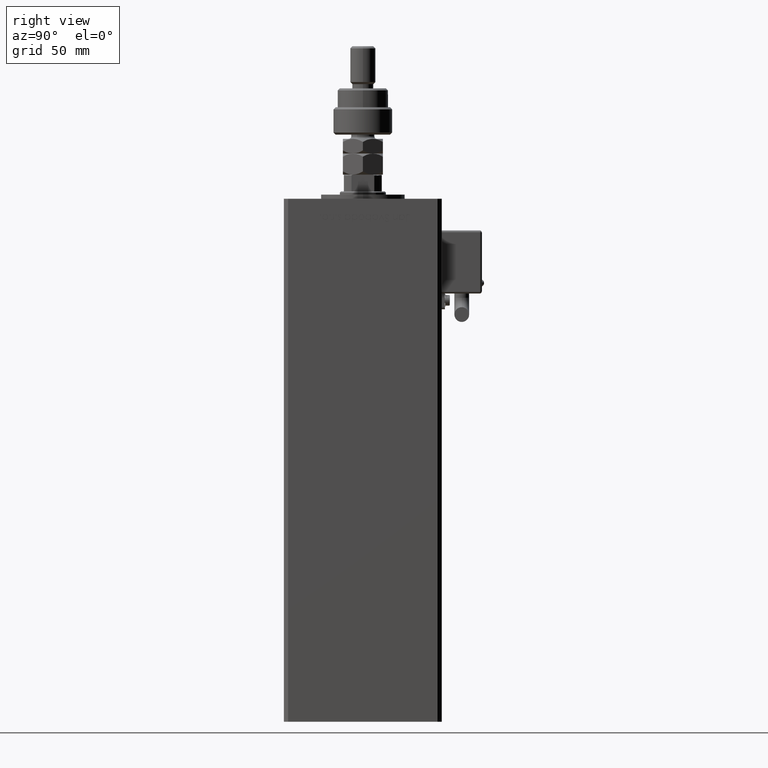
[diagram: clean part render]
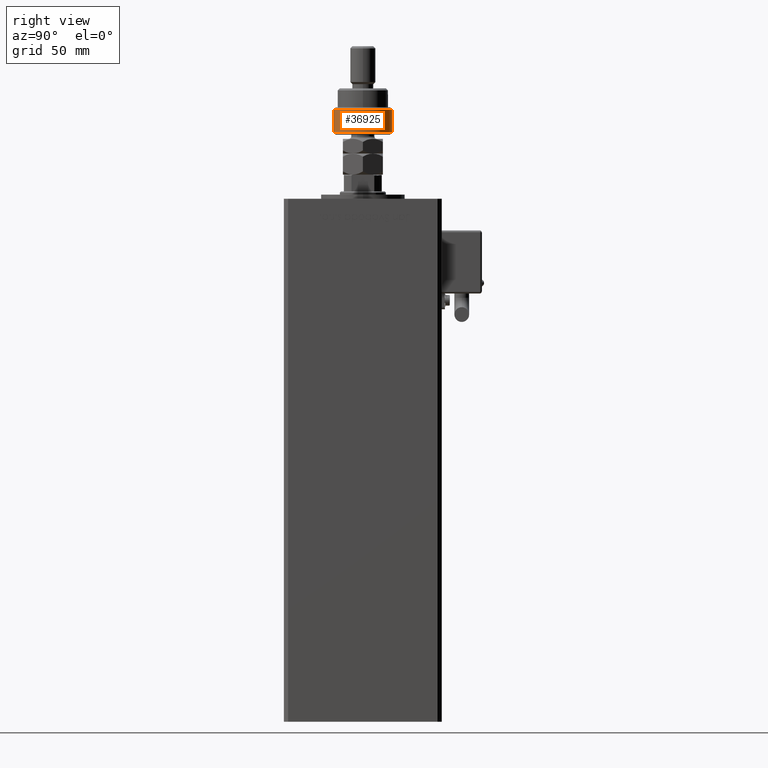
[diagram: same view with one face highlighted and labeled with its STEP entity id]
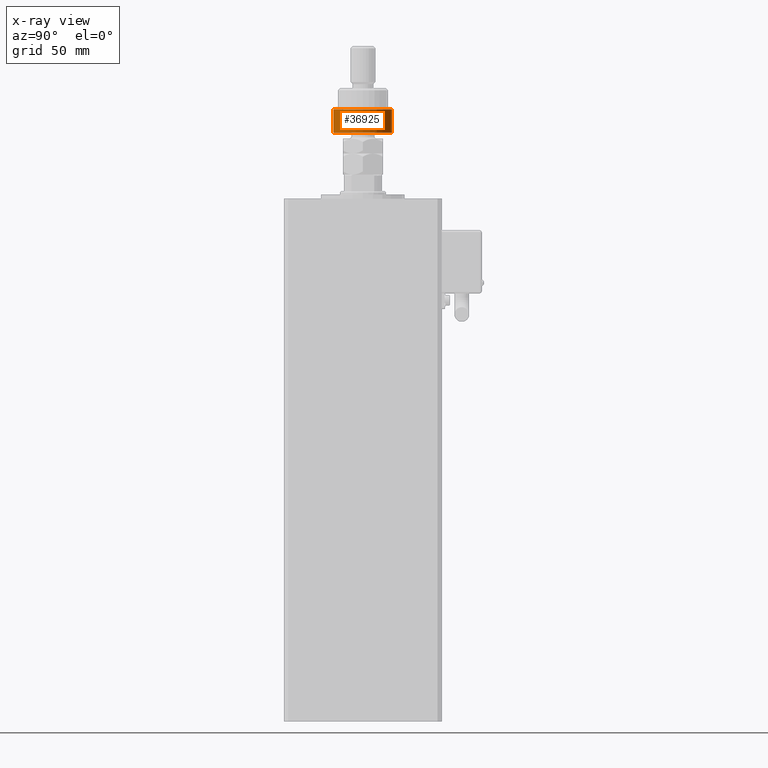
[diagram: x-ray of the same camera — body ghosted, the highlighted face saturated]
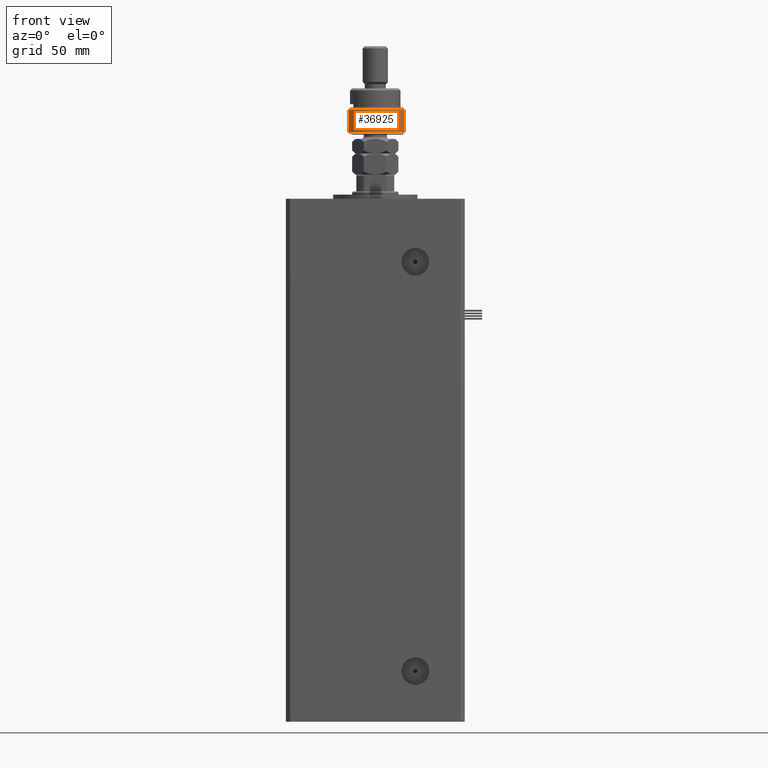
[diagram: same view with one face highlighted and labeled with its STEP entity id]
A machine part, right view. The second image highlights one B-rep face of the part: STEP entity #36925.
The next image is the same camera in x-ray: the body ghosted, the highlighted face saturated — about 0% of this face is hidden behind the body in this view.
A second angle (front view) of the same face is appended — the face is thin or edge-on in the first view.
In plain terms, the highlighted cylindrical surface (edge-blend (fillet) strip) has radius 14 mm, axis along (-0, -0, -1).
Its self-contained STEP definition (entity closure, byte-faithful):
#367 = EDGE_LOOP ( 'NONE', ( #19791, #40585, #48115, #1237, #17623 ) ) ;
#1237 = ORIENTED_EDGE ( 'NONE', *, *, #2043, .T. ) ;
#2043 = EDGE_CURVE ( 'NONE', #46832, #46411, #13606, .T. ) ;
#2228 = LINE ( 'NONE', #54739, #42811 ) ;
#3867 = DIRECTION ( 'NONE',  ( -0.000000000000000000, -0.000000000000000000, -1.000000000000000000 ) ) ;
#3967 = DIRECTION ( 'NONE',  ( 1.000000000000000000, 0.000000000000000000, 0.000000000000000000 ) ) ;
#5589 = EDGE_CURVE ( 'NONE', #46411, #53382, #53091, .T. ) ;
#6070 = DIRECTION ( 'NONE',  ( -0.000000000000000000, -0.000000000000000000, -1.000000000000000000 ) ) ;
#6934 = CARTESIAN_POINT ( 'NONE',  ( -12.64911064067351809, 6.000000000000000000, 1.000000000000021760 ) ) ;
#7738 = EDGE_CURVE ( 'NONE', #25061, #28308, #39131, .T. ) ;
#7969 = AXIS2_PLACEMENT_3D ( 'NONE', #54086, #18596, #3967 ) ;
#8258 = AXIS2_PLACEMENT_3D ( 'NONE', #51159, #46760, #24465 ) ;
#9097 = AXIS2_PLACEMENT_3D ( 'NONE', #15790, #29287, #26007 ) ;
#9098 = CARTESIAN_POINT ( 'NONE',  ( -12.64911064067351809, -5.999999999999999112, 1.000000000000021760 ) ) ;
#11442 = DIRECTION ( 'NONE',  ( -0.000000000000000000, -0.000000000000000000, -1.000000000000000000 ) ) ;
#13057 = CARTESIAN_POINT ( 'NONE',  ( -12.64911064067351809, -5.999999999999999112, 12.00000000000002842 ) ) ;
#13606 = CIRCLE ( 'NONE', #7969, 14.00000000000000000 ) ;
#15790 = CARTESIAN_POINT ( 'NONE',  ( 0.000000000000000000, 0.000000000000000000, 1.000000000000018208 ) ) ;
#15832 = LINE ( 'NONE', #33704, #57277 ) ;
#17623 = ORIENTED_EDGE ( 'NONE', *, *, #5589, .T. ) ;
#18596 = DIRECTION ( 'NONE',  ( -0.000000000000000000, -0.000000000000000000, 1.000000000000000000 ) ) ;
#19791 = ORIENTED_EDGE ( 'NONE', *, *, #45210, .F. ) ;
#24092 = EDGE_CURVE ( 'NONE', #28308, #46832, #15832, .T. ) ;
#24465 = DIRECTION ( 'NONE',  ( 1.000000000000000000, 0.000000000000000000, 0.000000000000000000 ) ) ;
#25061 = VERTEX_POINT ( 'NONE', #38111 ) ;
#25278 = CARTESIAN_POINT ( 'NONE',  ( 0.000000000000000000, 0.000000000000000000, 13.00000000000000000 ) ) ;
#25557 = CYLINDRICAL_SURFACE ( 'NONE', #37917, 14.00000000000000000 ) ;
#26007 = DIRECTION ( 'NONE',  ( 1.000000000000000000, 0.000000000000000000, 0.000000000000000000 ) ) ;
#28308 = VERTEX_POINT ( 'NONE', #13057 ) ;
#28858 = CARTESIAN_POINT ( 'NONE',  ( 14.00000000000000000, 0.000000000000000000, 1.000000000000018208 ) ) ;
#29287 = DIRECTION ( 'NONE',  ( -0.000000000000000000, -0.000000000000000000, 1.000000000000000000 ) ) ;
#30835 = DIRECTION ( 'NONE',  ( -1.000000000000000000, 0.000000000000000000, 0.000000000000000000 ) ) ;
#33704 = CARTESIAN_POINT ( 'NONE',  ( -12.64911064067351809, -5.999999999999999112, 14.50000000000000000 ) ) ;
#36925 = ADVANCED_FACE ( 'NONE', ( #48147 ), #25557, .T. ) ;
#37917 = AXIS2_PLACEMENT_3D ( 'NONE', #25278, #3867, #30835 ) ;
#38111 = CARTESIAN_POINT ( 'NONE',  ( -12.64911064067351809, 6.000000000000000000, 12.00000000000002842 ) ) ;
#39131 = CIRCLE ( 'NONE', #8258, 14.00000000000000000 ) ;
#40585 = ORIENTED_EDGE ( 'NONE', *, *, #7738, .T. ) ;
#42811 = VECTOR ( 'NONE', #6070, 1000.000000000000000 ) ;
#45210 = EDGE_CURVE ( 'NONE', #25061, #53382, #2228, .T. ) ;
#46411 = VERTEX_POINT ( 'NONE', #28858 ) ;
#46760 = DIRECTION ( 'NONE',  ( 0.000000000000000000, 0.000000000000000000, -1.000000000000000000 ) ) ;
#46832 = VERTEX_POINT ( 'NONE', #9098 ) ;
#48115 = ORIENTED_EDGE ( 'NONE', *, *, #24092, .T. ) ;
#48147 = FACE_OUTER_BOUND ( 'NONE', #367, .T. ) ;
#51159 = CARTESIAN_POINT ( 'NONE',  ( 0.000000000000000000, 0.000000000000000000, 12.00000000000002842 ) ) ;
#53091 = CIRCLE ( 'NONE', #9097, 14.00000000000000000 ) ;
#53382 = VERTEX_POINT ( 'NONE', #6934 ) ;
#54086 = CARTESIAN_POINT ( 'NONE',  ( 0.000000000000000000, 0.000000000000000000, 1.000000000000018208 ) ) ;
#54739 = CARTESIAN_POINT ( 'NONE',  ( -12.64911064067351809, 6.000000000000000000, 14.50000000000000000 ) ) ;
#57277 = VECTOR ( 'NONE', #11442, 1000.000000000000000 ) ;